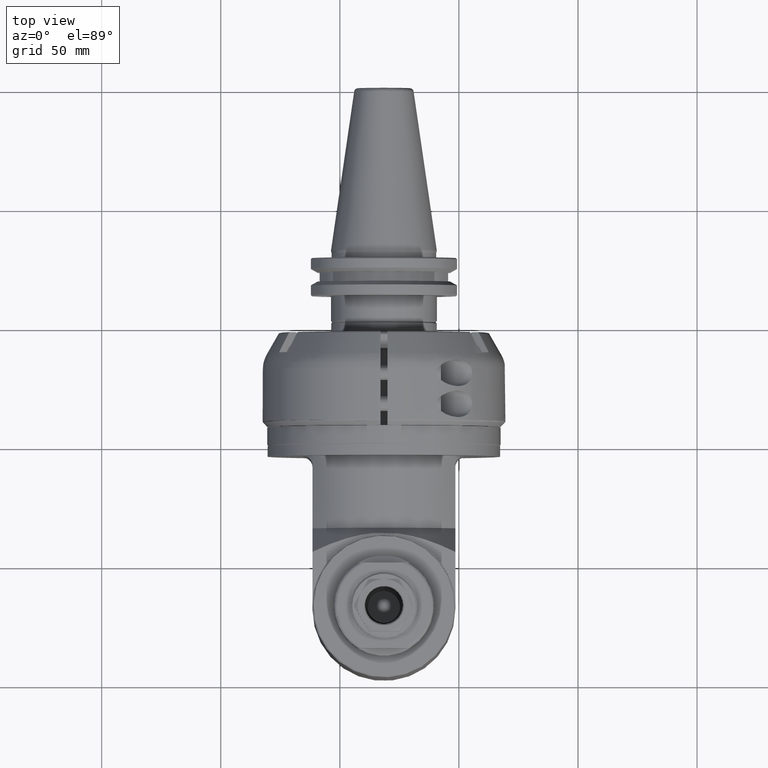
[diagram: clean part render]
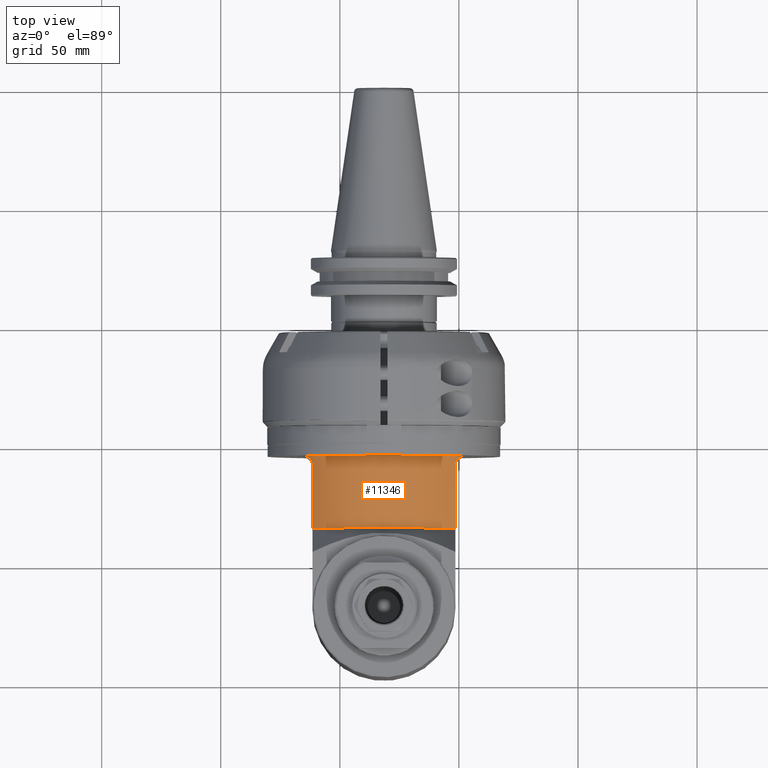
[diagram: same view with one face highlighted and labeled with its STEP entity id]
A machine part, top view. The second image highlights one B-rep face of the part: STEP entity #11346.
In plain terms, the highlighted cylindrical surface (partial cylindrical patch) has radius 39.5 mm, axis along (-0, 1, 0).
Its self-contained STEP definition (entity closure, byte-faithful):
#176=B_SPLINE_CURVE_WITH_KNOTS('',3,(#17446,#17447,#17448,#17449,#17450,
#17451,#17452,#17453,#17454,#17455,#17456,#17457),.UNSPECIFIED.,.F.,.F.,
(4,2,2,2,2,4),(1.93050828222532,2.00304267815854,2.07557707409176,2.2206458659582,
2.49658064397712,2.77251542199604),.UNSPECIFIED.);
#177=B_SPLINE_CURVE_WITH_KNOTS('',3,(#17459,#17460,#17461,#17462,#17463,
#17464,#17465,#17466,#17467,#17468,#17469,#17470),.UNSPECIFIED.,.F.,.F.,
(4,2,2,2,2,4),(1.08850114245451,1.36443592047346,1.64037069849241,1.78543949035887,
1.85797388629209,1.93050828222532),.UNSPECIFIED.);
#1001=FACE_OUTER_BOUND('',#1737,.T.);
#1737=EDGE_LOOP('',(#7781,#7782,#7783,#7784,#7785,#7786));
#2584=LINE('',#17348,#3359);
#2591=LINE('',#17382,#3366);
#3359=VECTOR('',#13633,26.5);
#3366=VECTOR('',#13652,26.5);
#4140=CIRCLE('',#12162,39.5);
#4149=CIRCLE('',#12179,39.5);
#4855=VERTEX_POINT('',#17345);
#4856=VERTEX_POINT('',#17347);
#4867=VERTEX_POINT('',#17377);
#4868=VERTEX_POINT('',#17381);
#4879=VERTEX_POINT('',#17413);
#4880=VERTEX_POINT('',#17414);
#5994=EDGE_CURVE('',#4856,#4855,#2584,.T.);
#6008=EDGE_CURVE('',#4868,#4867,#2591,.T.);
#6021=EDGE_CURVE('',#4879,#4880,#4140,.T.);
#6036=EDGE_CURVE('',#4868,#4879,#176,.T.);
#6037=EDGE_CURVE('',#4856,#4867,#4149,.T.);
#6038=EDGE_CURVE('',#4880,#4855,#177,.T.);
#7781=ORIENTED_EDGE('',*,*,#6021,.F.);
#7782=ORIENTED_EDGE('',*,*,#6036,.F.);
#7783=ORIENTED_EDGE('',*,*,#6008,.T.);
#7784=ORIENTED_EDGE('',*,*,#6037,.F.);
#7785=ORIENTED_EDGE('',*,*,#5994,.T.);
#7786=ORIENTED_EDGE('',*,*,#6038,.F.);
#11133=CYLINDRICAL_SURFACE('',#12178,39.5);
#11346=ADVANCED_FACE('',(#1001),#11133,.T.);
#12162=AXIS2_PLACEMENT_3D('',#17415,#13669,#13670);
#12178=AXIS2_PLACEMENT_3D('',#17445,#13707,#13708);
#12179=AXIS2_PLACEMENT_3D('',#17458,#13709,#13710);
#13633=DIRECTION('',(0.,1.,0.));
#13652=DIRECTION('',(0.,-1.,0.));
#13669=DIRECTION('center_axis',(0.,1.,0.));
#13670=DIRECTION('ref_axis',(0.509011880072991,0.,0.860759493670885));
#13707=DIRECTION('center_axis',(0.,1.,0.));
#13708=DIRECTION('ref_axis',(1.,0.,0.));
#13709=DIRECTION('center_axis',(0.,-1.,0.));
#13710=DIRECTION('ref_axis',(1.,0.,0.));
#17345=CARTESIAN_POINT('',(14.85537210298,36.5,-30.));
#17347=CARTESIAN_POINT('',(14.85537210298,10.,-30.));
#17348=CARTESIAN_POINT('',(14.85537210298,10.,-30.));
#17377=CARTESIAN_POINT('',(14.85537210298,10.,30.));
#17381=CARTESIAN_POINT('',(14.85537210298,36.5,30.));
#17382=CARTESIAN_POINT('',(14.85537210298,36.5,30.));
#17413=CARTESIAN_POINT('',(9.266011050802,40.5,34.));
#17414=CARTESIAN_POINT('',(9.266011050801,40.5,-34.));
#17415=CARTESIAN_POINT('Origin',(-10.83995821208,40.5,0.));
#17445=CARTESIAN_POINT('Origin',(-10.83995821208,24.60210073516,0.));
#17446=CARTESIAN_POINT('Ctrl Pts',(14.8553721029792,36.5,30.));
#17447=CARTESIAN_POINT('Ctrl Pts',(14.8553721029792,36.7417813197774,30.));
#17448=CARTESIAN_POINT('Ctrl Pts',(14.8293950849164,36.9865568879428,30.0223065786437));
#17449=CARTESIAN_POINT('Ctrl Pts',(14.7262459725631,37.4634279245404,30.1101941971067));
#17450=CARTESIAN_POINT('Ctrl Pts',(14.649094484787,37.6955363715735,30.1757289931184));
#17451=CARTESIAN_POINT('Ctrl Pts',(14.3545302802544,38.3498225616322,30.4229103159919));
#17452=CARTESIAN_POINT('Ctrl Pts',(14.0704706289006,38.7293083563774,30.6572643831154));
#17453=CARTESIAN_POINT('Ctrl Pts',(13.1991858243718,39.5828815049562,31.3512769999091));
#17454=CARTESIAN_POINT('Ctrl Pts',(12.4745939739211,39.955310173942,31.8997692146199));
#17455=CARTESIAN_POINT('Ctrl Pts',(10.9043632190243,40.4153899163436,32.9901214337526));
#17456=CARTESIAN_POINT('Ctrl Pts',(10.0577226501822,40.5,33.5318197328769));
#17457=CARTESIAN_POINT('Ctrl Pts',(9.26601105080309,40.5,34.));
#17458=CARTESIAN_POINT('Origin',(-10.83995821208,10.,0.));
#17459=CARTESIAN_POINT('Ctrl Pts',(9.26601105080309,40.5,-34.));
#17460=CARTESIAN_POINT('Ctrl Pts',(10.0577226501822,40.5000000000001,-33.531819732877));
#17461=CARTESIAN_POINT('Ctrl Pts',(10.9043632190243,40.4153899163436,-32.9901214337526));
#17462=CARTESIAN_POINT('Ctrl Pts',(12.4745939739212,39.955310173942,-31.8997692146199));
#17463=CARTESIAN_POINT('Ctrl Pts',(13.1991858243718,39.5828815049562,-31.3512769999091));
#17464=CARTESIAN_POINT('Ctrl Pts',(14.0704706289006,38.7293083563774,-30.6572643831154));
#17465=CARTESIAN_POINT('Ctrl Pts',(14.3545302802544,38.3498225616322,-30.4229103159919));
#17466=CARTESIAN_POINT('Ctrl Pts',(14.649094484787,37.6955363715735,-30.1757289931184));
#17467=CARTESIAN_POINT('Ctrl Pts',(14.7262459725631,37.4634279245404,-30.1101941971067));
#17468=CARTESIAN_POINT('Ctrl Pts',(14.8293950849164,36.9865568879428,-30.0223065786437));
#17469=CARTESIAN_POINT('Ctrl Pts',(14.8553721029792,36.7417813197774,-30.));
#17470=CARTESIAN_POINT('Ctrl Pts',(14.8553721029792,36.5,-30.));